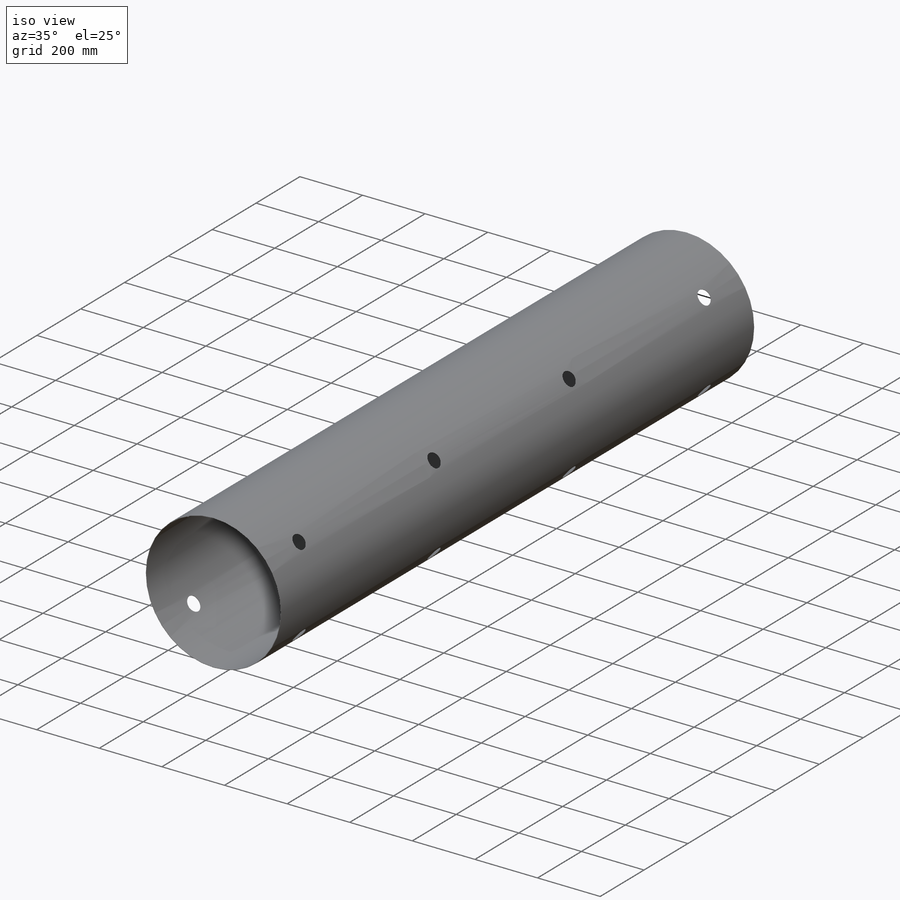
[diagram: iso view]
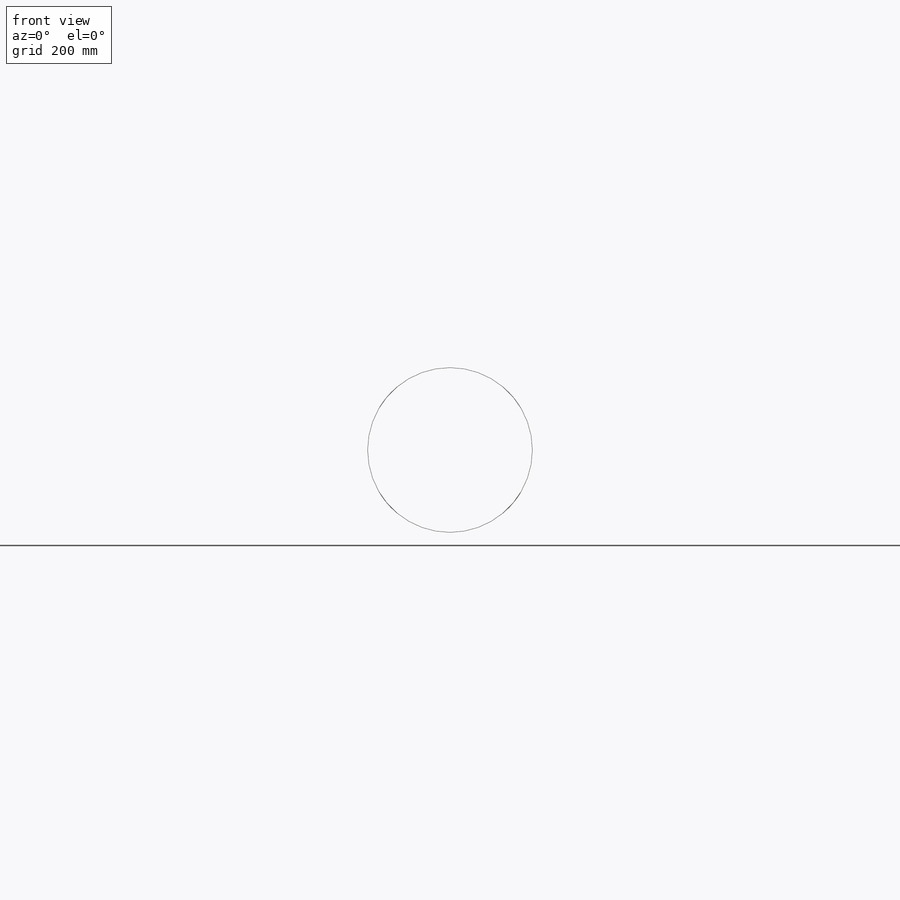
[diagram: front view]
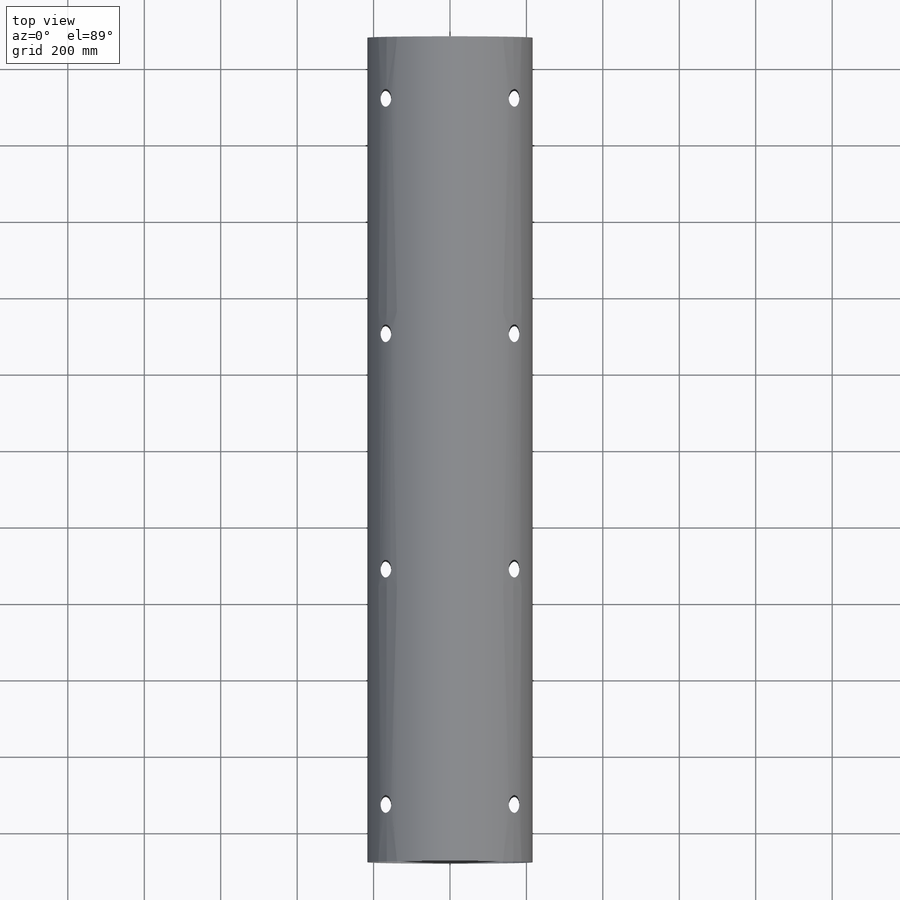
[diagram: top view]
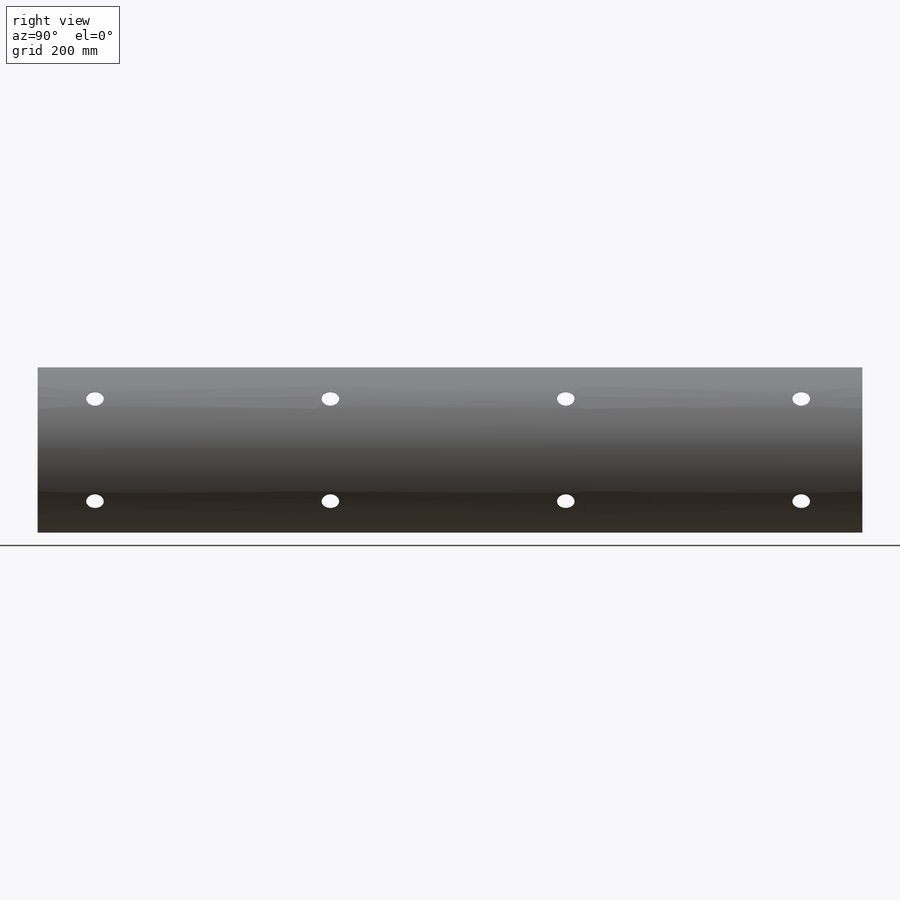
[diagram: right view]
SOLIDWORKS PART (.sldprt)
format: sldprt  version: not decoded by parser v0  size: 327,680 bytes
history: native  units: mm
features: sketch x4, plane x2, cut_extrude x2, material x1, extrude x1, mirror x1, pattern_linear x1 (+11 scaffold rows collapsed)
feature tree (23):
  scaffold x11  (default folders/planes/origin — collapsed)
  material  "Hexcel AS4C (3000 Filaments)"
  sketch  "Sketch4"  dims[c1.D1=~26.09837mm c2.D1=~141.427695deg]
  plane  "low"
  plane  "high"
  sketch  "Sketch1"  dims[c1.D1=~116.852062mm c1.D2=432.25mm c2.D1=1.15mm]
  extrude  "Extrude1"  Depth=2158mm
  sketch  "Sketch2"  dims[D2=46.0mm D1=0.0mm]
  cut_extrude  "Extrude2"  [1 undecoded]
  sketch  "Sketch3"  dims[D1=46.0mm]
  cut_extrude  "Extrude3"  [1 undecoded]
  mirror  "Mirror1"
  pattern_linear  "LPattern1"  Count1=4 Count2=1 Spacing1=616mm Spacing2=50mm
decode coverage: 6 of 9 modeling features carry decoded parameters
note: ~ marks probable driven/reference dimensions
note: 2 parameter values undecoded
note: suppression state not decoded; provenance and decode notes live in map.json
